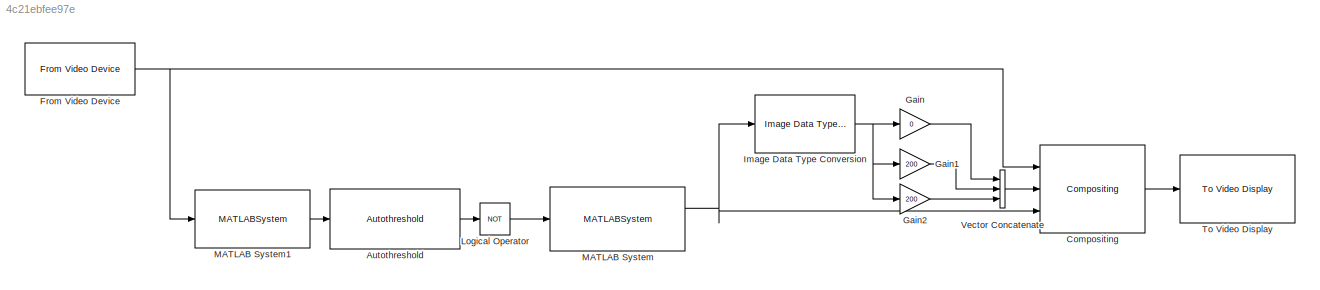
MODEL slx_4c21ebfee97e
KIND model
CONFIG AbsTol = auto
CONFIG EnableMultiTasking = on
CONFIG FixedStep = auto
CONFIG MaxStep = auto
CONFIG MinStep = auto
CONFIG RelTol = 1e-3
CONFIG SampleTimeConstraint = Unconstrained
CONFIG SolverName = FixedStepAuto
CONFIG StartTime = 0.0
CONFIG StopTime = 10.0
BLOCK [Reference] Autothreshold  REF=visionconversions/Autothreshold
  Ports = [1, 1]
  SourceBlock = visionconversions/Autothreshold
  SourceProductBaseCode = VP
  SourceType = Autothreshold
BLOCK [Reference] Compositing  REF=visiontextngfix/Compositing
  Ports = [3, 1]
  SourceBlock = visiontextngfix/Compositing
  SourceProductBaseCode = VP
  SourceType = Compositing
BLOCK [Reference] From Video Device  REF=imaqlib/From Video Device
  Ports = [0, 1]
  SourceBlock = imaqlib/From Video Device
  SourceProductBaseCode = IA
  SourceType = From Video Device
  UserDataPersistent = on
BLOCK [Gain] Gain
  Gain = 0
  ParamDataTypeStr = uint8
BLOCK [Gain] Gain1
  Gain = 200
  ParamDataTypeStr = uint8
BLOCK [Gain] Gain2
  Gain = 200
  ParamDataTypeStr = uint8
BLOCK [Reference] Image Data Type Conversion  REF=visionconversions/Image Data Type
Conversion
  Ports = [1, 1]
  SourceBlock = visionconversions/Image Data Type\nConversion
  SourceProductBaseCode = VP
  SourceType = Image Data Type Conversion
BLOCK [Logic] Logical Operator
  AllPortsSameDT = off
  Operator = NOT
  OutDataTypeStr = boolean
  Ports = [1, 1]
BLOCK [MATLABSystem] MATLAB System
  Degree = 3
  MaskDisplay = disp('BW to Line');\nport_label('input',1,'BW');\nport_label('output',1,'Line');\nport_label('output',2,'P');
  MaskType = CurveDetectionSystem
  Ports = [1, 2]
  SimulateUsing = Code generation
  System = CurveDetectionSystem
BLOCK [MATLABSystem] MATLAB System1
  MaskDisplay = disp('RGB to Gray');\nport_label('input',1,'RGB');\nport_label('output',1,'Gray');
  MaskType = Rgb2GraySystem
  Ports = [1, 1]
  SimulateUsing = Code generation
  System = Rgb2GraySystem
BLOCK [Reference] To Video Display  REF=visionsinks/To Video Display
  Ports = [1]
  SourceBlock = visionsinks/To Video Display
  SourceProductBaseCode = VP
  SourceType = To Video Display
BLOCK [Concatenate] Vector Concatenate
  ConcatenateDimension = 3
  Mode = Multidimensional array
  NumInputs = 3
  Ports = [3, 1]
LINE Autothreshold:1 -> Logical Operator:1
LINE Compositing:1 -> To Video Display:1
NET From Video Device:1 -> Compositing:1, MATLAB System1:1
LINE Gain1:1 -> Vector Concatenate:2
LINE Gain2:1 -> Vector Concatenate:3
LINE Gain:1 -> Vector Concatenate:1
NET Image Data Type Conversion:1 -> Gain1:1, Gain2:1, Gain:1
LINE Logical Operator:1 -> MATLAB System:1
LINE MATLAB System1:1 -> Autothreshold:1
NET MATLAB System:1 -> Compositing:3, Image Data Type Conversion:1
LINE Vector Concatenate:1 -> Compositing:2
note: NET lines group one-source signal fan-out (src -> all destinations, sorted); 1:1 wires keep LINE
